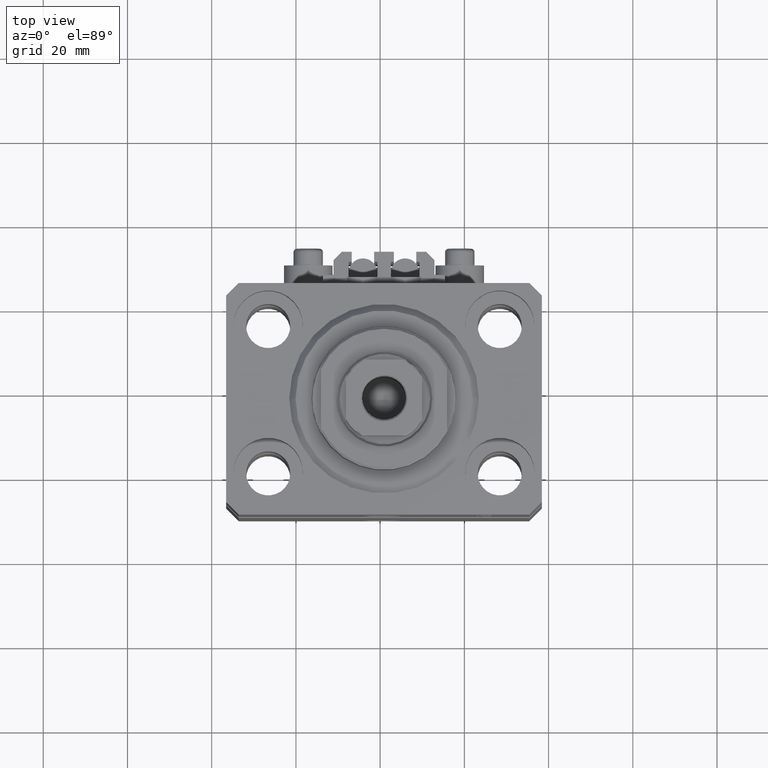
[diagram: clean part render]
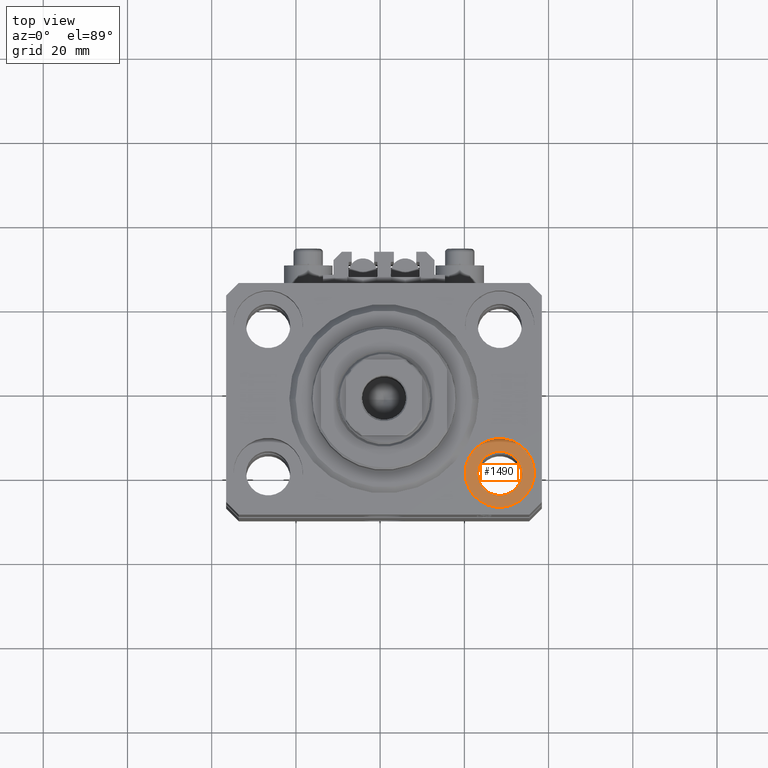
[diagram: same view with one face highlighted and labeled with its STEP entity id]
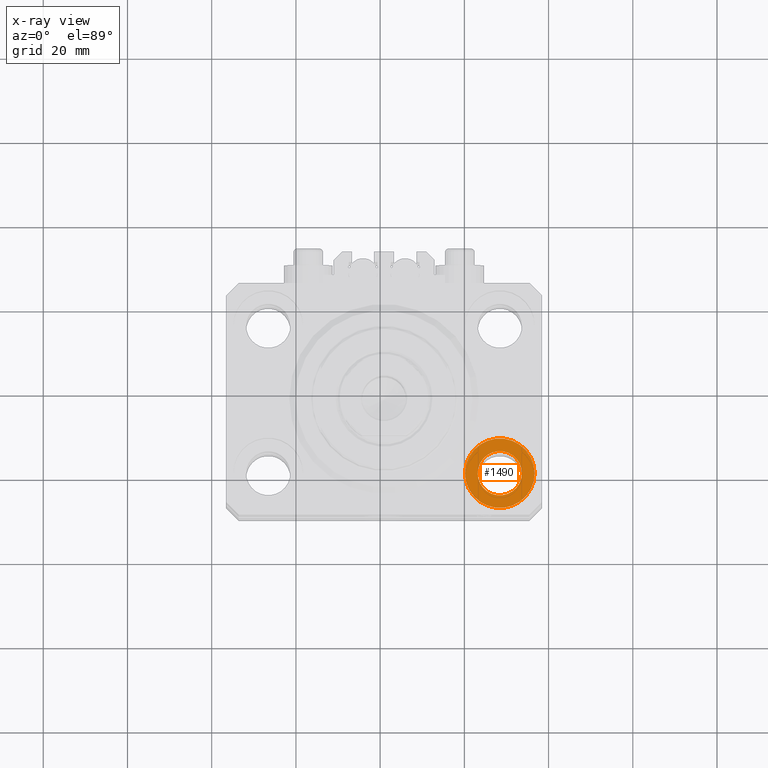
[diagram: x-ray of the same camera — body ghosted, the highlighted face saturated]
A machine part, top view. The second image highlights one B-rep face of the part: STEP entity #1490.
The next image is the same camera in x-ray: the body ghosted, the highlighted face saturated — about 0% of this face is hidden behind the body in this view.
In plain terms, the highlighted planar face has unit normal (0, 0, 1).
Its self-contained STEP definition (entity closure, byte-faithful):
#1490 = ADVANCED_FACE ( 'NONE', ( #23645, #45830 ), #42171, .T. ) ;
#4602 = VERTEX_POINT ( 'NONE', #36596 ) ;
#6609 = AXIS2_PLACEMENT_3D ( 'NONE', #33597, #19464, #18977 ) ;
#6620 = EDGE_LOOP ( 'NONE', ( #31861, #40164 ) ) ;
#7792 = CARTESIAN_POINT ( 'NONE',  ( 35.75000000000000711, -17.50000000000000000, -11.00000000000000000 ) ) ;
#8395 = VERTEX_POINT ( 'NONE', #47185 ) ;
#9466 = DIRECTION ( 'NONE',  ( 1.000000000000000000, 0.000000000000000000, 0.000000000000000000 ) ) ;
#11317 = AXIS2_PLACEMENT_3D ( 'NONE', #16373, #35376, #20275 ) ;
#11475 = EDGE_CURVE ( 'NONE', #12226, #4602, #16725, .T. ) ;
#12226 = VERTEX_POINT ( 'NONE', #19605 ) ;
#12938 = ORIENTED_EDGE ( 'NONE', *, *, #36324, .T. ) ;
#16373 = CARTESIAN_POINT ( 'NONE',  ( 27.50000000000000355, -17.50000000000000000, -11.00000000000000000 ) ) ;
#16568 = DIRECTION ( 'NONE',  ( 0.000000000000000000, 0.000000000000000000, 1.000000000000000000 ) ) ;
#16725 = CIRCLE ( 'NONE', #6609, 5.249999999999997335 ) ;
#18977 = DIRECTION ( 'NONE',  ( 1.000000000000000000, 0.000000000000000000, 0.000000000000000000 ) ) ;
#19464 = DIRECTION ( 'NONE',  ( 0.000000000000000000, 0.000000000000000000, 1.000000000000000000 ) ) ;
#19605 = CARTESIAN_POINT ( 'NONE',  ( 22.25000000000000711, -17.50000000000000000, -11.00000000000000000 ) ) ;
#20275 = DIRECTION ( 'NONE',  ( 1.000000000000000000, 0.000000000000000000, 0.000000000000000000 ) ) ;
#20471 = DIRECTION ( 'NONE',  ( 1.000000000000000000, 0.000000000000000000, -0.000000000000000000 ) ) ;
#21242 = EDGE_CURVE ( 'NONE', #39596, #8395, #37933, .T. ) ;
#22667 = AXIS2_PLACEMENT_3D ( 'NONE', #46306, #16568, #20471 ) ;
#23645 = FACE_BOUND ( 'NONE', #6620, .T. ) ;
#24336 = CIRCLE ( 'NONE', #46107, 8.250000000000000000 ) ;
#26095 = CIRCLE ( 'NONE', #11317, 5.249999999999997335 ) ;
#27030 = AXIS2_PLACEMENT_3D ( 'NONE', #31641, #42847, #9466 ) ;
#28674 = ORIENTED_EDGE ( 'NONE', *, *, #21242, .T. ) ;
#30245 = EDGE_LOOP ( 'NONE', ( #28674, #12938 ) ) ;
#31641 = CARTESIAN_POINT ( 'NONE',  ( 27.50000000000000355, -17.50000000000000000, -11.00000000000000000 ) ) ;
#31861 = ORIENTED_EDGE ( 'NONE', *, *, #44891, .F. ) ;
#33597 = CARTESIAN_POINT ( 'NONE',  ( 27.50000000000000355, -17.50000000000000000, -11.00000000000000000 ) ) ;
#35376 = DIRECTION ( 'NONE',  ( 0.000000000000000000, 0.000000000000000000, 1.000000000000000000 ) ) ;
#36324 = EDGE_CURVE ( 'NONE', #8395, #39596, #24336, .T. ) ;
#36596 = CARTESIAN_POINT ( 'NONE',  ( 32.75000000000000000, -17.50000000000000000, -11.00000000000000000 ) ) ;
#37933 = CIRCLE ( 'NONE', #27030, 8.250000000000000000 ) ;
#38411 = DIRECTION ( 'NONE',  ( 1.000000000000000000, 0.000000000000000000, 0.000000000000000000 ) ) ;
#38658 = DIRECTION ( 'NONE',  ( 0.000000000000000000, 0.000000000000000000, 1.000000000000000000 ) ) ;
#39596 = VERTEX_POINT ( 'NONE', #7792 ) ;
#40164 = ORIENTED_EDGE ( 'NONE', *, *, #11475, .F. ) ;
#41344 = CARTESIAN_POINT ( 'NONE',  ( 27.50000000000000355, -17.50000000000000000, -11.00000000000000000 ) ) ;
#42171 = PLANE ( 'NONE',  #22667 ) ;
#42847 = DIRECTION ( 'NONE',  ( 0.000000000000000000, 0.000000000000000000, 1.000000000000000000 ) ) ;
#44891 = EDGE_CURVE ( 'NONE', #4602, #12226, #26095, .T. ) ;
#45830 = FACE_OUTER_BOUND ( 'NONE', #30245, .T. ) ;
#46107 = AXIS2_PLACEMENT_3D ( 'NONE', #41344, #38658, #38411 ) ;
#46306 = CARTESIAN_POINT ( 'NONE',  ( 27.50000000000000355, -17.50000000000000000, -11.00000000000000000 ) ) ;
#47185 = CARTESIAN_POINT ( 'NONE',  ( 19.25000000000000000, -17.50000000000000000, -11.00000000000000000 ) ) ;